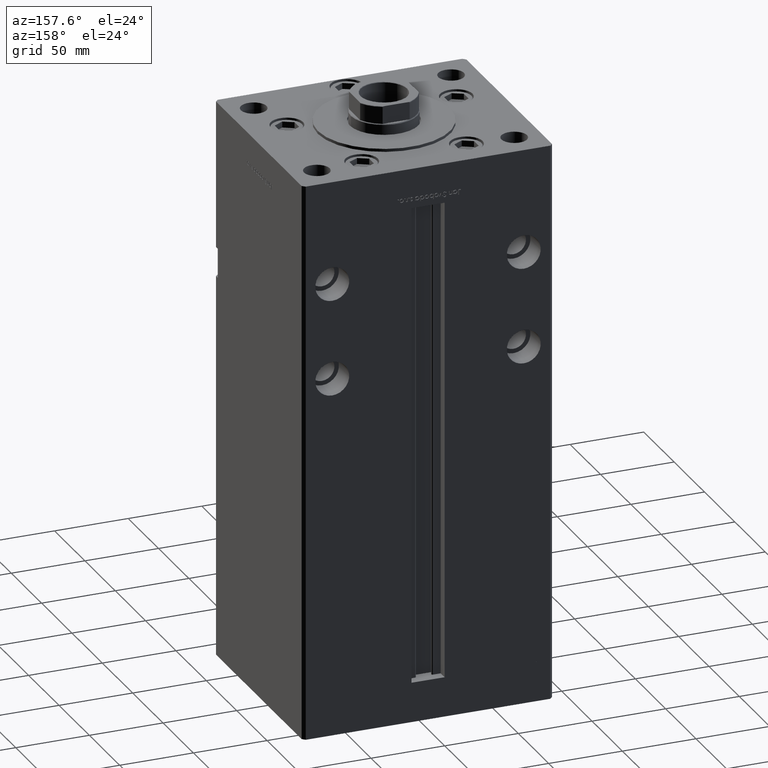
[diagram: clean part render]
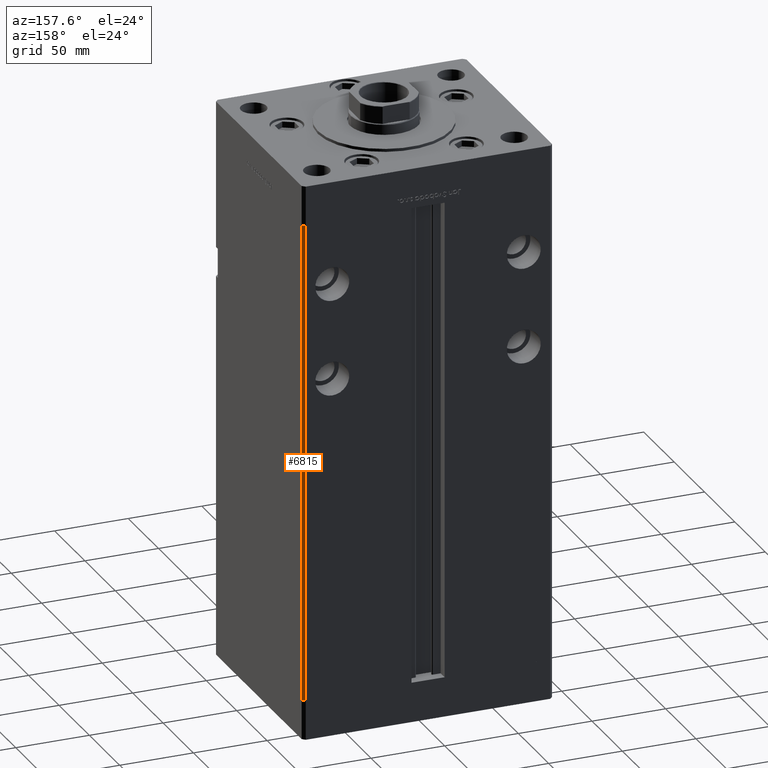
[diagram: same view with one face highlighted and labeled with its STEP entity id]
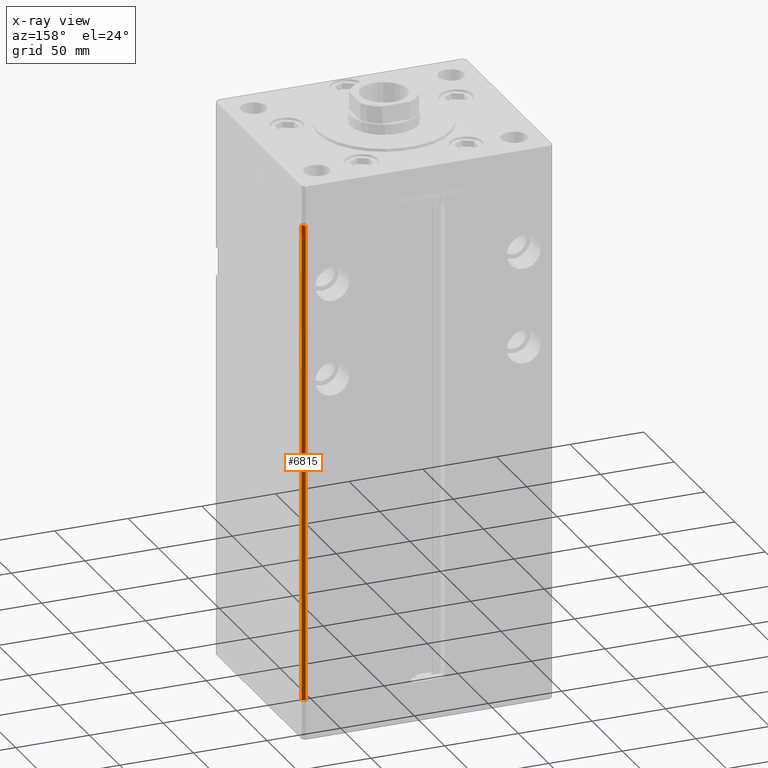
[diagram: x-ray of the same camera — body ghosted, the highlighted face saturated]
A machine part, auxiliary view. The second image highlights one B-rep face of the part: STEP entity #6815.
The next image is the same camera in x-ray: the body ghosted, the highlighted face saturated — about 0% of this face is hidden behind the body in this view.
In plain terms, the highlighted planar face has unit normal (0.7071, 0.7071, 0).
Its self-contained STEP definition (entity closure, byte-faithful):
#263 = CARTESIAN_POINT ( 'NONE',  ( 83.00000000000001421, 72.50000000000000000, 0.000000000000000000 ) ) ;
#780 = LINE ( 'NONE', #263, #14083 ) ;
#1149 = VERTEX_POINT ( 'NONE', #5224 ) ;
#1553 = FACE_OUTER_BOUND ( 'NONE', #2543, .T. ) ;
#2543 = EDGE_LOOP ( 'NONE', ( #7393, #7986, #9244, #32226 ) ) ;
#5224 = CARTESIAN_POINT ( 'NONE',  ( 85.00000000000001421, 70.50000000000000000, 0.000000000000000000 ) ) ;
#5529 = CARTESIAN_POINT ( 'NONE',  ( 83.00000000000001421, 72.50000000000000000, 326.0000000000000000 ) ) ;
#6815 = ADVANCED_FACE ( 'NONE', ( #1553 ), #17911, .T. ) ;
#7393 = ORIENTED_EDGE ( 'NONE', *, *, #11608, .F. ) ;
#7986 = ORIENTED_EDGE ( 'NONE', *, *, #39877, .F. ) ;
#9244 = ORIENTED_EDGE ( 'NONE', *, *, #24172, .T. ) ;
#9600 = DIRECTION ( 'NONE',  ( 0.7071067811865500152, -0.7071067811865451302, 0.000000000000000000 ) ) ;
#10146 = LINE ( 'NONE', #21702, #15443 ) ;
#10280 = VERTEX_POINT ( 'NONE', #46430 ) ;
#10654 = DIRECTION ( 'NONE',  ( -0.7071067811865500152, 0.7071067811865451302, 0.000000000000000000 ) ) ;
#11608 = EDGE_CURVE ( 'NONE', #27485, #1149, #780, .T. ) ;
#14083 = VECTOR ( 'NONE', #9600, 1000.000000000000114 ) ;
#15443 = VECTOR ( 'NONE', #38086, 1000.000000000000000 ) ;
#17911 = PLANE ( 'NONE',  #43097 ) ;
#18747 = CARTESIAN_POINT ( 'NONE',  ( 83.00000000000001421, 72.50000000000000000, 326.0000000000000000 ) ) ;
#21702 = CARTESIAN_POINT ( 'NONE',  ( 83.00000000000001421, 72.50000000000000000, 326.0000000000000000 ) ) ;
#22756 = DIRECTION ( 'NONE',  ( 0.7071067811865451302, 0.7071067811865500152, -0.000000000000000000 ) ) ;
#24172 = EDGE_CURVE ( 'NONE', #41813, #10280, #50997, .T. ) ;
#25067 = VECTOR ( 'NONE', #35898, 1000.000000000000000 ) ;
#27485 = VERTEX_POINT ( 'NONE', #47301 ) ;
#27574 = CARTESIAN_POINT ( 'NONE',  ( 85.00000000000001421, 70.50000000000000000, 326.0000000000000000 ) ) ;
#30813 = LINE ( 'NONE', #27574, #25067 ) ;
#32226 = ORIENTED_EDGE ( 'NONE', *, *, #50462, .T. ) ;
#35898 = DIRECTION ( 'NONE',  ( -0.000000000000000000, -0.000000000000000000, -1.000000000000000000 ) ) ;
#38086 = DIRECTION ( 'NONE',  ( -0.000000000000000000, -0.000000000000000000, -1.000000000000000000 ) ) ;
#39877 = EDGE_CURVE ( 'NONE', #41813, #27485, #10146, .T. ) ;
#41813 = VERTEX_POINT ( 'NONE', #5529 ) ;
#43097 = AXIS2_PLACEMENT_3D ( 'NONE', #46380, #22756, #10654 ) ;
#46380 = CARTESIAN_POINT ( 'NONE',  ( 83.00000000000001421, 72.50000000000000000, 326.0000000000000000 ) ) ;
#46430 = CARTESIAN_POINT ( 'NONE',  ( 85.00000000000001421, 70.50000000000000000, 326.0000000000000000 ) ) ;
#46942 = VECTOR ( 'NONE', #47232, 1000.000000000000114 ) ;
#47232 = DIRECTION ( 'NONE',  ( 0.7071067811865500152, -0.7071067811865451302, 0.000000000000000000 ) ) ;
#47301 = CARTESIAN_POINT ( 'NONE',  ( 83.00000000000001421, 72.50000000000000000, 0.000000000000000000 ) ) ;
#50462 = EDGE_CURVE ( 'NONE', #10280, #1149, #30813, .T. ) ;
#50997 = LINE ( 'NONE', #18747, #46942 ) ;